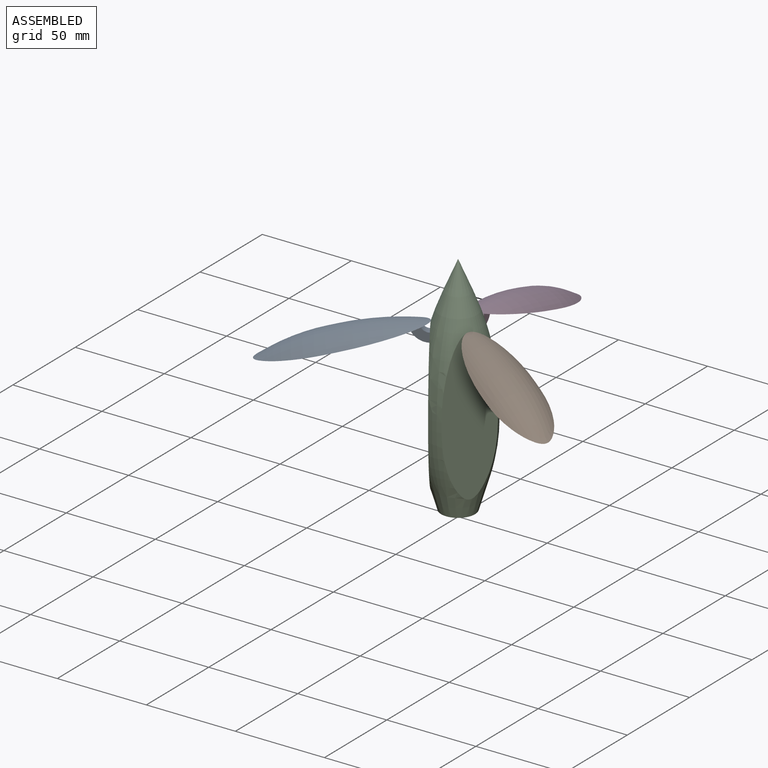
[diagram: assembled view]
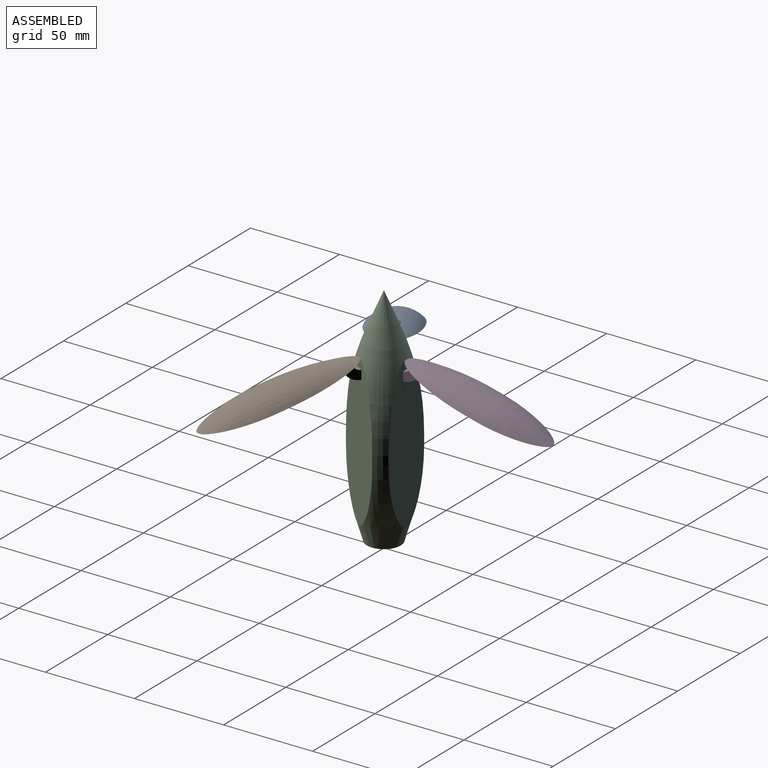
[diagram: assembled view, second angle]
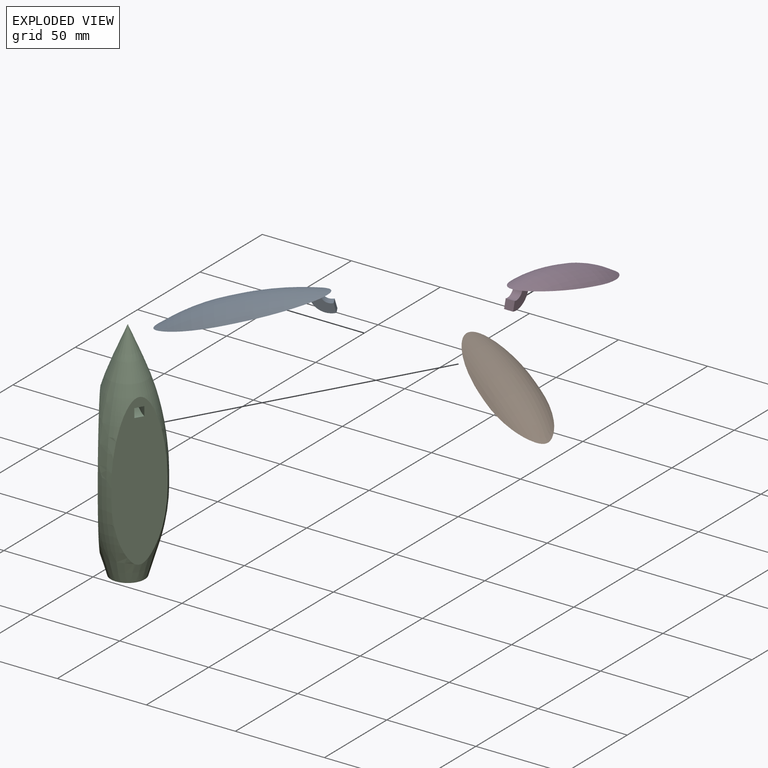
[diagram: exploded view]
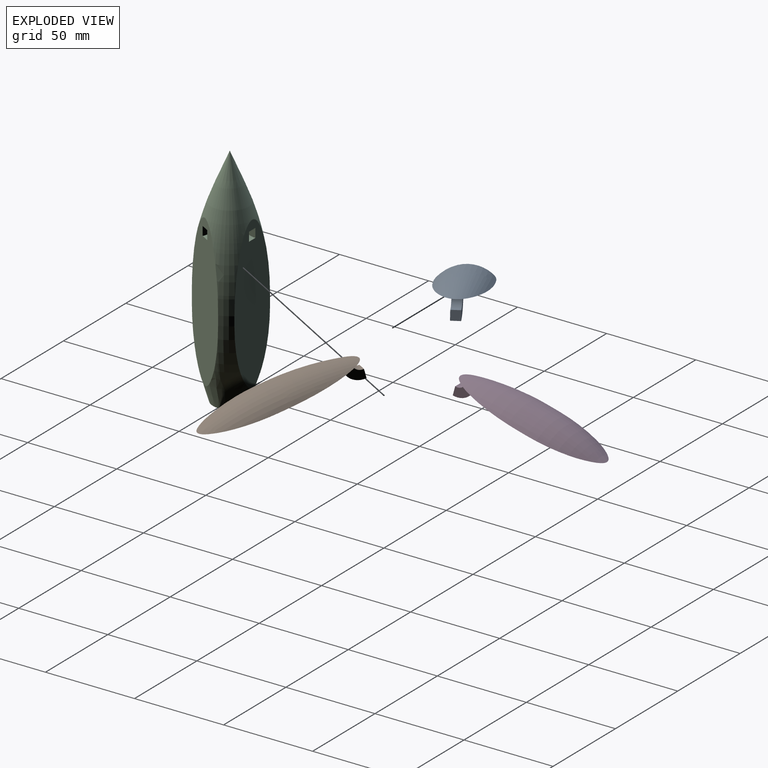
[diagram: exploded view, second angle]
ASSEMBLY  parts=4 mates=3
PART A: 10 faces, bbox 18.2x24.7x85 mm
  f0: plane 85.03x24.75mm, normal (-0.87,-0.5,0), area 1862.5mm2, adj f1,f2,f3,f4,f5,f7,f8,f9
  f1: cone r=19.05mm half-angle=16.7deg, axis (0,0,1), area 78.5mm2, adj f0,f4
  f2: revolved ~43.49x24.75mm, area 1062.7mm2, adj f0,f3
  f3: cylinder r=19.05mm len=24.75mm, axis (0,0,-1), area 165.7mm2, adj f0,f2,f4
  f4: revolved ~29.19x24.75mm, area 803.9mm2, adj f0,f1,f3
  f5: cylinder r=5.08mm len=6.94mm, axis (-0.5,0.87,0), area 40.5mm2, adj f0,f6,f8,f9
  f6: plane 6.94x6.94mm, normal (0,0,1), area 25.8mm2, adj f5,f7,f8,f9
  f7: cylinder r=10.16mm len=11.34mm, axis (-0.5,0.87,0), area 81.1mm2, adj f0,f6,f8,f9
  f8: plane 10.16x8.8mm, normal (0.5,-0.87,0), area 60.8mm2, adj f0,f5,f6,f7
  f9: plane 10.16x8.8mm, normal (-0.5,0.87,0), area 60.8mm2, adj f0,f5,f6,f7
PART B: 10 faces, bbox 18.2x24.7x85 mm
  f0: plane 85.03x24.75mm, normal (0.87,-0.5,0), area 1862.5mm2, adj f1,f2,f3,f4,f5,f6,f8,f9
  f1: revolved ~29.19x24.75mm, area 803.9mm2, adj f0,f2,f4
  f2: cone r=19.05mm half-angle=16.7deg, axis (0,0,1), area 78.5mm2, adj f0,f1
  f3: revolved ~43.49x24.75mm, area 1062.7mm2, adj f0,f4
  f4: cylinder r=19.05mm len=24.75mm, axis (0,0,-1), area 165.7mm2, adj f0,f1,f3
  f5: cylinder r=5.08mm len=6.94mm, axis (0.5,0.87,0), area 40.5mm2, adj f0,f7,f8,f9
  f6: cylinder r=10.16mm len=11.34mm, axis (0.5,0.87,0), area 81.1mm2, adj f0,f7,f8,f9
  f7: plane 6.94x6.94mm, normal (0,0,1), area 25.8mm2, adj f5,f6,f8,f9
  f8: plane 10.16x8.8mm, normal (-0.5,-0.87,0), area 60.8mm2, adj f0,f5,f6,f7
  f9: plane 10.16x8.8mm, normal (0.5,0.87,0), area 60.8mm2, adj f0,f5,f6,f7
PART C: 28 faces, bbox 38.1x38.1x127 mm
  f0: plane 85.03x24.75mm, normal (-0.87,0.5,0), area 1862.5mm2, adj f2,f3,f4,f8,f9,f10,f23,f24
  f1: revolved ~29.19x15.89mm, area 288.7mm2, adj f5,f8,f11,f12
  f2: cylinder r=19.05mm len=7.54mm, axis (0,0,-1), area 38.9mm2, adj f0,f4,f9,f12
  f3: cylinder r=19.05mm len=6.53mm, axis (0,0,-1), area 38.9mm2, adj f0,f9,f10,f11
  f4: revolved ~29.19x18.23mm, area 288.7mm2, adj f0,f2,f8,f12
  f5: cylinder r=19.05mm len=6.53mm, axis (0,0,-1), area 38.9mm2, adj f1,f9,f11,f12
  f6: cone r=19.05mm half-angle=23.2deg, axis (0,0,-1), area 383.3mm2, adj f9
  f7: plane 19.05x19.05mm, normal (0,0,-1), area 285mm2, adj f8
  f8: cone r=19.05mm half-angle=16.7deg, axis (0,0,1), area 1156.1mm2, adj f0,f1,f4,f7,f10,f11,f12
  f9: revolved ~59.03x38.1mm, area 2527.2mm2, adj f0,f2,f3,f5,f6,f11,f12
  f10: revolved ~29.19x15.89mm, area 288.7mm2, adj f0,f3,f8,f11
  f11: plane 85.03x28.59mm, normal (0,-1,0), area 1862.4mm2, adj f1,f3,f5,f8,f9,f10,f13,f14
  f12: plane 85.03x24.75mm, normal (0.87,0.5,0), area 1862.5mm2, adj f1,f2,f4,f5,f8,f9,f18,f20
  f13: cylinder r=5.08mm len=5.08mm, axis (-1,0,0), area 40.5mm2, adj f11,f15,f16,f17
  f14: cylinder r=10.16mm len=10.16mm, axis (-1,0,0), area 81.1mm2, adj f11,f15,f16,f17
  f15: plane 5.08x5.08mm, normal (0,0,-1), area 25.8mm2, adj f13,f14,f16,f17
  f16: plane 10.16x10.16mm, normal (-1,0,0), area 60.8mm2, adj f11,f13,f14,f15
  f17: plane 10.16x10.16mm, normal (1,0,0), area 60.8mm2, adj f11,f13,f14,f15
  f18: cylinder r=5.08mm len=6.94mm, axis (0.5,-0.87,0), area 40.5mm2, adj f12,f19,f21,f22
  f19: plane 6.94x6.94mm, normal (0,0,-1), area 25.8mm2, adj f18,f20,f21,f22
  f20: cylinder r=10.16mm len=11.34mm, axis (0.5,-0.87,0), area 81.1mm2, adj f12,f19,f21,f22
  f21: plane 10.16x8.8mm, normal (0.5,-0.87,0), area 60.8mm2, adj f12,f18,f19,f20
  f22: plane 10.16x8.8mm, normal (-0.5,0.87,0), area 60.8mm2, adj f12,f18,f19,f20
  f23: cylinder r=5.08mm len=6.94mm, axis (-0.5,-0.87,0), area 40.5mm2, adj f0,f25,f26,f27
  f24: cylinder r=10.16mm len=11.34mm, axis (-0.5,-0.87,0), area 81.1mm2, adj f0,f25,f26,f27
  f25: plane 6.94x6.94mm, normal (0,0,-1), area 25.8mm2, adj f23,f24,f26,f27
  f26: plane 10.16x8.8mm, normal (-0.5,-0.87,0), area 60.8mm2, adj f0,f23,f24,f25
  f27: plane 10.16x8.8mm, normal (0.5,0.87,0), area 60.8mm2, adj f0,f23,f24,f25
PART D: 10 faces, bbox 28.6x16.6x85 mm
  f0: plane 85.03x28.59mm, normal (0,1,0), area 1862.4mm2, adj f1,f2,f3,f4,f5,f6,f8,f9
  f1: revolved ~29.19x28.58mm, area 803.9mm2, adj f0,f2,f4
  f2: cone r=19.05mm half-angle=16.7deg, axis (0,0,1), area 78.5mm2, adj f0,f1
  f3: revolved ~43.49x28.58mm, area 1062.5mm2, adj f0,f4
  f4: cylinder r=19.05mm len=28.58mm, axis (0,0,-1), area 165.7mm2, adj f0,f1,f3
  f5: cylinder r=5.08mm len=5.08mm, axis (-1,0,0), area 40.5mm2, adj f0,f7,f8,f9
  f6: cylinder r=10.16mm len=10.16mm, axis (-1,0,0), area 81.1mm2, adj f0,f7,f8,f9
  f7: plane 5.08x5.08mm, normal (0,0,1), area 25.8mm2, adj f5,f6,f8,f9
  f8: plane 10.16x10.16mm, normal (1,0,0), area 60.8mm2, adj f0,f5,f6,f7
  f9: plane 10.16x10.16mm, normal (-1,0,0), area 60.8mm2, adj f0,f5,f6,f7
PLACE A rot(axis=(-0.53,-0.3,-0.79),180deg) t=(-34.65,-20,11.36)mm
PLACE B rot(axis=(-0.53,0.3,0.79),180deg) t=(34.65,-20,11.36)mm
PLACE C rot(axis=(0,0,1),180deg) t=(0,0,0)mm
PLACE D rot(axis=(0,0.61,-0.79),180deg) t=(0,40.01,11.36)mm
MATE revolute B.f5 <-> C.f23  axis (0.5,0.87,0) through (12.18,-4.1,31.75)mm
MATE revolute A.f5 <-> C.f18  axis (0.5,-0.87,0) through (-9.64,-8.5,31.75)mm
MATE revolute D.f5 <-> C.f13  axis (-1,0,0) through (-2.54,12.6,31.75)mm
